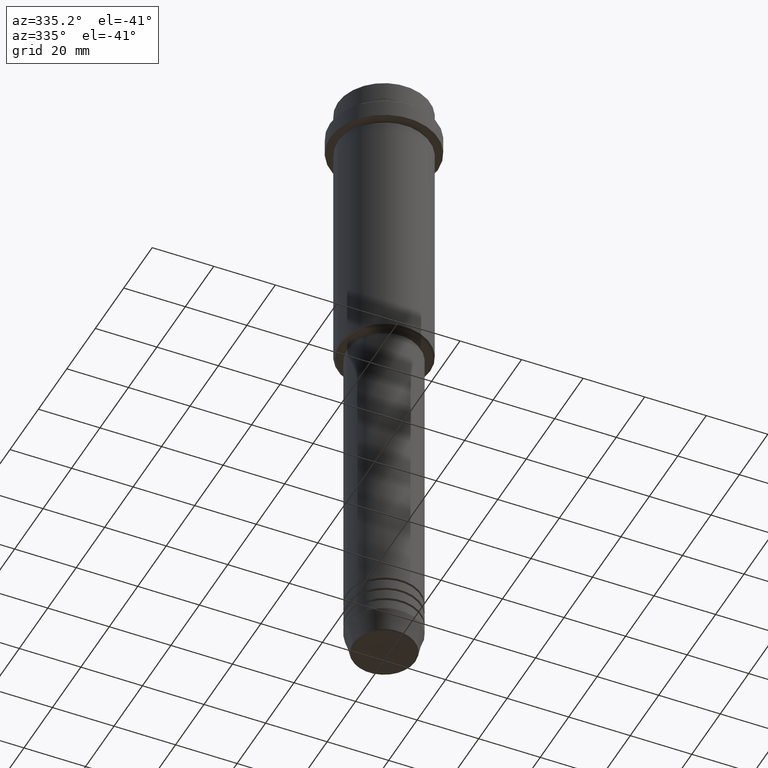
[diagram: clean part render]
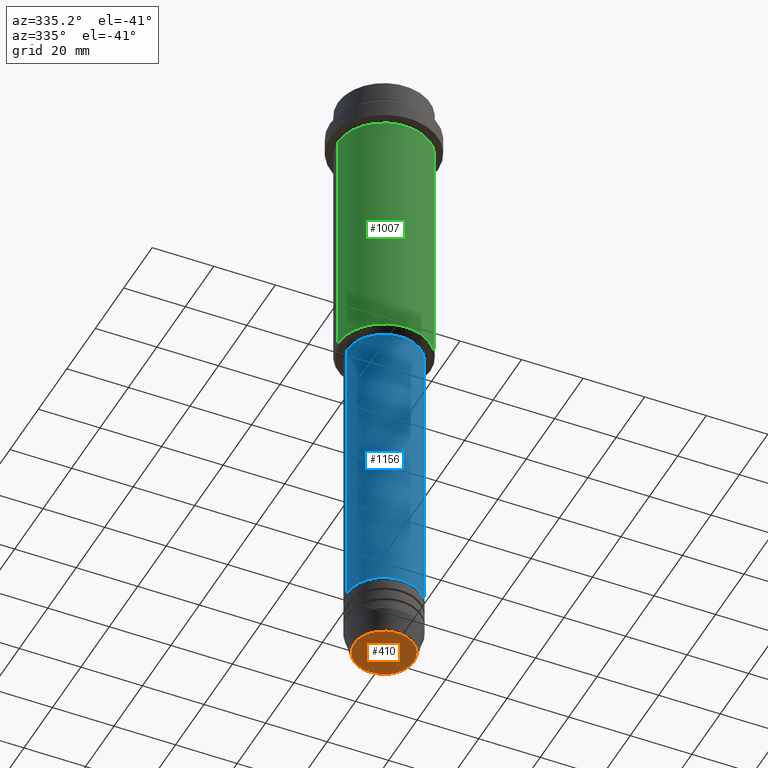
[diagram: same view with three faces highlighted in distinct colors, each labeled with its STEP entity id]
A machine part, auxiliary view with three faces highlighted in distinct colors.
Their STEP definitions:

[orange] entity #410 — the highlighted planar face has unit normal (0, -0, 1).
#59 = CARTESIAN_POINT ( 'NONE',  ( 9.740692158992663607, 0.000000000000000000, -210.0000000000000284 ) ) ;
#74 = AXIS2_PLACEMENT_3D ( 'NONE', #1409, #408, #205 ) ;
#84 = VERTEX_POINT ( 'NONE', #1059 ) ;
#205 = DIRECTION ( 'NONE',  ( 1.000000000000000000, 0.000000000000000000, 0.000000000000000000 ) ) ;
#236 = CIRCLE ( 'NONE', #350, 9.740692158992663607 ) ;
#340 = DIRECTION ( 'NONE',  ( 1.000000000000000000, 0.000000000000000000, 0.000000000000000000 ) ) ;
#350 = AXIS2_PLACEMENT_3D ( 'NONE', #1309, #841, #750 ) ;
#353 = EDGE_CURVE ( 'NONE', #1047, #84, #236, .T. ) ;
#408 = DIRECTION ( 'NONE',  ( 0.000000000000000000, 0.000000000000000000, -1.000000000000000000 ) ) ;
#410 = ADVANCED_FACE ( 'NONE', ( #795 ), #1017, .F. ) ;
#457 = AXIS2_PLACEMENT_3D ( 'NONE', #1108, #558, #340 ) ;
#558 = DIRECTION ( 'NONE',  ( 0.000000000000000000, -0.000000000000000000, 1.000000000000000000 ) ) ;
#658 = ORIENTED_EDGE ( 'NONE', *, *, #353, .T. ) ;
#750 = DIRECTION ( 'NONE',  ( 1.000000000000000000, 0.000000000000000000, 0.000000000000000000 ) ) ;
#789 = EDGE_CURVE ( 'NONE', #84, #1047, #804, .T. ) ;
#795 = FACE_OUTER_BOUND ( 'NONE', #1246, .T. ) ;
#804 = CIRCLE ( 'NONE', #74, 9.740692158992663607 ) ;
#841 = DIRECTION ( 'NONE',  ( 0.000000000000000000, 0.000000000000000000, -1.000000000000000000 ) ) ;
#960 = ORIENTED_EDGE ( 'NONE', *, *, #789, .T. ) ;
#1017 = PLANE ( 'NONE',  #457 ) ;
#1047 = VERTEX_POINT ( 'NONE', #59 ) ;
#1059 = CARTESIAN_POINT ( 'NONE',  ( -9.740692158992663607, 1.222463696683475393E-15, -210.0000000000000284 ) ) ;
#1108 = CARTESIAN_POINT ( 'NONE',  ( 0.000000000000000000, 0.000000000000000000, -210.0000000000000284 ) ) ;
#1246 = EDGE_LOOP ( 'NONE', ( #658, #960 ) ) ;
#1309 = CARTESIAN_POINT ( 'NONE',  ( 0.000000000000000000, 0.000000000000000000, -210.0000000000000284 ) ) ;
#1409 = CARTESIAN_POINT ( 'NONE',  ( 0.000000000000000000, 0.000000000000000000, -210.0000000000000284 ) ) ;

[blue] entity #1156 — the highlighted cylindrical surface (partial cylindrical patch) has radius 12 mm, axis along (-0, -0, 1).
#41 = EDGE_LOOP ( 'NONE', ( #1041, #383, #584, #611 ) ) ;
#55 = DIRECTION ( 'NONE',  ( -0.000000000000000000, -0.000000000000000000, 1.000000000000000000 ) ) ;
#77 = CARTESIAN_POINT ( 'NONE',  ( 0.000000000000000000, 0.000000000000000000, -96.00000000000000000 ) ) ;
#158 = EDGE_CURVE ( 'NONE', #1369, #986, #1238, .T. ) ;
#206 = CARTESIAN_POINT ( 'NONE',  ( -12.00000000000000000, 1.469576158976823947E-15, -190.9999999999999147 ) ) ;
#221 = EDGE_CURVE ( 'NONE', #259, #1369, #1173, .T. ) ;
#230 = CARTESIAN_POINT ( 'NONE',  ( 12.00000000000000000, 0.000000000000000000, -190.9999999999999147 ) ) ;
#234 = AXIS2_PLACEMENT_3D ( 'NONE', #77, #1043, #368 ) ;
#259 = VERTEX_POINT ( 'NONE', #206 ) ;
#261 = DIRECTION ( 'NONE',  ( -0.000000000000000000, -0.000000000000000000, 1.000000000000000000 ) ) ;
#320 = DIRECTION ( 'NONE',  ( 1.000000000000000000, 0.000000000000000000, 0.000000000000000000 ) ) ;
#367 = VECTOR ( 'NONE', #1304, 1000.000000000000000 ) ;
#368 = DIRECTION ( 'NONE',  ( 1.000000000000000000, 0.000000000000000000, 0.000000000000000000 ) ) ;
#369 = CIRCLE ( 'NONE', #483, 12.00000000000000000 ) ;
#382 = CARTESIAN_POINT ( 'NONE',  ( 12.00000000000000000, 0.000000000000000000, 0.000000000000000000 ) ) ;
#383 = ORIENTED_EDGE ( 'NONE', *, *, #639, .T. ) ;
#407 = CARTESIAN_POINT ( 'NONE',  ( 0.000000000000000000, 0.000000000000000000, 0.000000000000000000 ) ) ;
#483 = AXIS2_PLACEMENT_3D ( 'NONE', #1247, #261, #693 ) ;
#520 = EDGE_CURVE ( 'NONE', #1326, #986, #592, .T. ) ;
#561 = CARTESIAN_POINT ( 'NONE',  ( -11.99999999999999822, 1.469576158976823750E-15, -96.00000000000000000 ) ) ;
#584 = ORIENTED_EDGE ( 'NONE', *, *, #520, .T. ) ;
#592 = LINE ( 'NONE', #382, #895 ) ;
#611 = ORIENTED_EDGE ( 'NONE', *, *, #158, .F. ) ;
#639 = EDGE_CURVE ( 'NONE', #259, #1326, #369, .T. ) ;
#665 = AXIS2_PLACEMENT_3D ( 'NONE', #407, #1189, #320 ) ;
#693 = DIRECTION ( 'NONE',  ( 1.000000000000000000, 0.000000000000000000, 0.000000000000000000 ) ) ;
#857 = FACE_OUTER_BOUND ( 'NONE', #41, .T. ) ;
#895 = VECTOR ( 'NONE', #55, 1000.000000000000000 ) ;
#950 = CYLINDRICAL_SURFACE ( 'NONE', #665, 12.00000000000000000 ) ;
#980 = CARTESIAN_POINT ( 'NONE',  ( 11.99999999999999822, 0.000000000000000000, -96.00000000000000000 ) ) ;
#986 = VERTEX_POINT ( 'NONE', #980 ) ;
#1041 = ORIENTED_EDGE ( 'NONE', *, *, #221, .F. ) ;
#1043 = DIRECTION ( 'NONE',  ( -0.000000000000000000, -0.000000000000000000, 1.000000000000000000 ) ) ;
#1156 = ADVANCED_FACE ( 'NONE', ( #857 ), #950, .T. ) ;
#1173 = LINE ( 'NONE', #1403, #367 ) ;
#1189 = DIRECTION ( 'NONE',  ( -0.000000000000000000, -0.000000000000000000, 1.000000000000000000 ) ) ;
#1238 = CIRCLE ( 'NONE', #234, 11.99999999999999822 ) ;
#1247 = CARTESIAN_POINT ( 'NONE',  ( 0.000000000000000000, 0.000000000000000000, -190.9999999999999147 ) ) ;
#1304 = DIRECTION ( 'NONE',  ( -0.000000000000000000, -0.000000000000000000, 1.000000000000000000 ) ) ;
#1326 = VERTEX_POINT ( 'NONE', #230 ) ;
#1369 = VERTEX_POINT ( 'NONE', #561 ) ;
#1403 = CARTESIAN_POINT ( 'NONE',  ( -12.00000000000000000, 1.469576158976823947E-15, 0.000000000000000000 ) ) ;

[green] entity #1007 — the highlighted cylindrical surface (partial cylindrical patch) has radius 15 mm, axis along (-0, -0, 1).
#4 = CARTESIAN_POINT ( 'NONE',  ( -15.00000000000000000, 1.836970198721029589E-15, 0.000000000000000000 ) ) ;
#30 = VERTEX_POINT ( 'NONE', #1094 ) ;
#34 = CYLINDRICAL_SURFACE ( 'NONE', #866, 15.00000000000000000 ) ;
#56 = DIRECTION ( 'NONE',  ( -1.000000000000000000, 0.000000000000000000, 0.000000000000000000 ) ) ;
#63 = ORIENTED_EDGE ( 'NONE', *, *, #601, .T. ) ;
#68 = EDGE_CURVE ( 'NONE', #30, #1139, #390, .T. ) ;
#91 = CARTESIAN_POINT ( 'NONE',  ( 15.00000000000000000, 0.000000000000000000, -94.49999999999998579 ) ) ;
#92 = VECTOR ( 'NONE', #774, 1000.000000000000000 ) ;
#97 = EDGE_CURVE ( 'NONE', #973, #1221, #664, .T. ) ;
#156 = DIRECTION ( 'NONE',  ( -0.000000000000000000, -0.000000000000000000, 1.000000000000000000 ) ) ;
#172 = CARTESIAN_POINT ( 'NONE',  ( 15.00000000000000000, 0.000000000000000000, 0.000000000000000000 ) ) ;
#179 = DIRECTION ( 'NONE',  ( 1.000000000000000000, 0.000000000000000000, 0.000000000000000000 ) ) ;
#279 = AXIS2_PLACEMENT_3D ( 'NONE', #720, #156, #179 ) ;
#376 = CARTESIAN_POINT ( 'NONE',  ( 0.000000000000000000, 0.000000000000000000, -94.49999999999998579 ) ) ;
#390 = CIRCLE ( 'NONE', #279, 15.00000000000000178 ) ;
#430 = LINE ( 'NONE', #4, #92 ) ;
#501 = FACE_OUTER_BOUND ( 'NONE', #1242, .T. ) ;
#583 = LINE ( 'NONE', #172, #825 ) ;
#601 = EDGE_CURVE ( 'NONE', #1221, #1139, #583, .T. ) ;
#664 = CIRCLE ( 'NONE', #1080, 15.00000000000000000 ) ;
#720 = CARTESIAN_POINT ( 'NONE',  ( 0.000000000000000000, 0.000000000000000000, -16.00000000000000000 ) ) ;
#753 = CARTESIAN_POINT ( 'NONE',  ( 15.00000000000000178, 0.000000000000000000, -16.00000000000000000 ) ) ;
#774 = DIRECTION ( 'NONE',  ( -0.000000000000000000, -0.000000000000000000, 1.000000000000000000 ) ) ;
#825 = VECTOR ( 'NONE', #919, 1000.000000000000000 ) ;
#866 = AXIS2_PLACEMENT_3D ( 'NONE', #1350, #1358, #1030 ) ;
#901 = CARTESIAN_POINT ( 'NONE',  ( -15.00000000000000000, 1.836970198721029589E-15, -94.49999999999998579 ) ) ;
#919 = DIRECTION ( 'NONE',  ( -0.000000000000000000, -0.000000000000000000, 1.000000000000000000 ) ) ;
#929 = ORIENTED_EDGE ( 'NONE', *, *, #68, .F. ) ;
#973 = VERTEX_POINT ( 'NONE', #901 ) ;
#1007 = ADVANCED_FACE ( 'NONE', ( #501 ), #34, .T. ) ;
#1030 = DIRECTION ( 'NONE',  ( 1.000000000000000000, 0.000000000000000000, 0.000000000000000000 ) ) ;
#1080 = AXIS2_PLACEMENT_3D ( 'NONE', #376, #1275, #56 ) ;
#1094 = CARTESIAN_POINT ( 'NONE',  ( -15.00000000000000355, 1.836970198721029983E-15, -16.00000000000000000 ) ) ;
#1135 = ORIENTED_EDGE ( 'NONE', *, *, #97, .T. ) ;
#1139 = VERTEX_POINT ( 'NONE', #753 ) ;
#1221 = VERTEX_POINT ( 'NONE', #91 ) ;
#1242 = EDGE_LOOP ( 'NONE', ( #1340, #1135, #63, #929 ) ) ;
#1275 = DIRECTION ( 'NONE',  ( -0.000000000000000000, -0.000000000000000000, 1.000000000000000000 ) ) ;
#1338 = EDGE_CURVE ( 'NONE', #973, #30, #430, .T. ) ;
#1340 = ORIENTED_EDGE ( 'NONE', *, *, #1338, .F. ) ;
#1350 = CARTESIAN_POINT ( 'NONE',  ( 0.000000000000000000, 0.000000000000000000, 0.000000000000000000 ) ) ;
#1358 = DIRECTION ( 'NONE',  ( -0.000000000000000000, -0.000000000000000000, 1.000000000000000000 ) ) ;